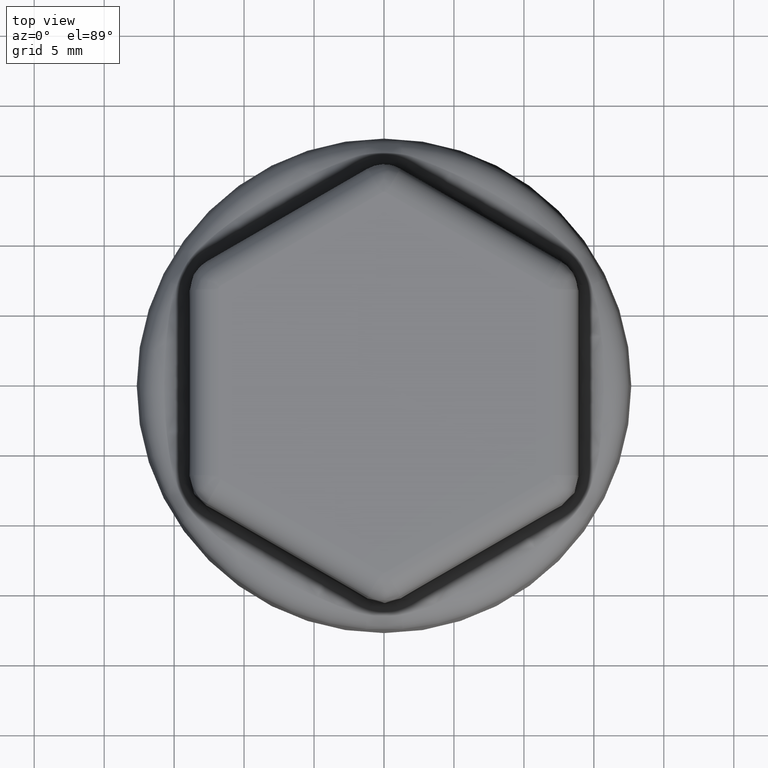
[diagram: clean part render]
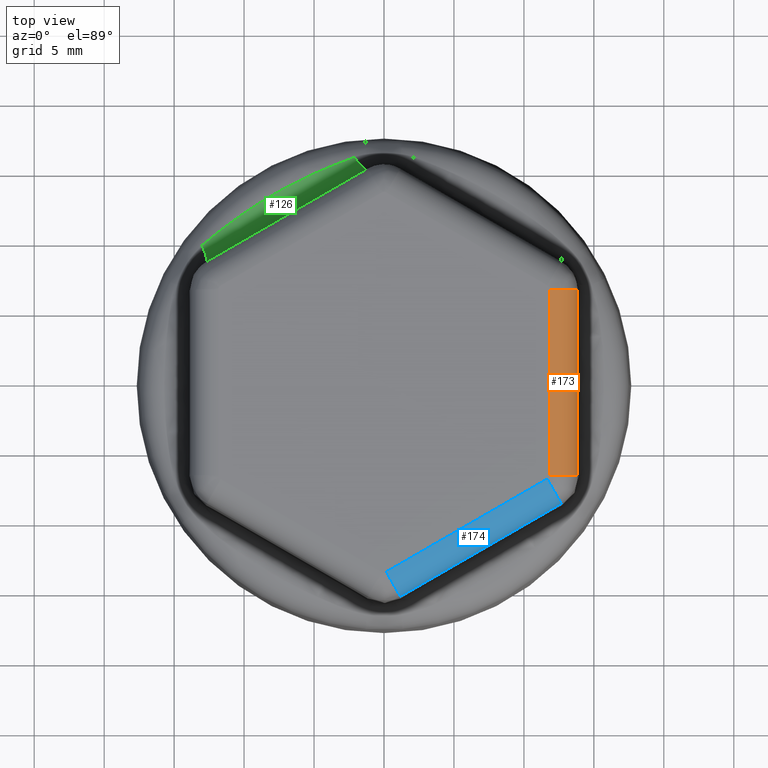
[diagram: same view with three faces highlighted in distinct colors, each labeled with its STEP entity id]
A machine part, top view with three faces highlighted in distinct colors.
Their STEP definitions:

[orange] entity #173 — the highlighted cylindrical surface (edge-blend (fillet) strip) has radius 2 mm, axis along (0, 1, -0).
#173 = ADVANCED_FACE( '', ( #382 ), #383, .T. );
#382 = FACE_OUTER_BOUND( '', #4601, .T. );
#383 = CYLINDRICAL_SURFACE( '', #4602, 2.00000000000000 );
#4601 = EDGE_LOOP( '', ( #5193, #5194, #5195, #5196 ) );
#4602 = AXIS2_PLACEMENT_3D( '', #5197, #5198, #5199 );
#5193 = ORIENTED_EDGE( '', *, *, #5501, .F. );
#5194 = ORIENTED_EDGE( '', *, *, #5431, .F. );
#5195 = ORIENTED_EDGE( '', *, *, #5499, .F. );
#5196 = ORIENTED_EDGE( '', *, *, #5494, .F. );
#5197 = CARTESIAN_POINT( '', ( 11.8251446946300, -6.63957206230187, 13.2999999999999 ) );
#5198 = DIRECTION( '', ( 3.36124605735811E-016, 1.00000000000000, -6.53563886928656E-015 ) );
#5199 = DIRECTION( '', ( 0.000000000000000, -6.53563886928656E-015, -1.00000000000000 ) );
#5431 = EDGE_CURVE( '', #5794, #5796, #5797, .F. );
#5494 = EDGE_CURVE( '', #5719, #5844, #5888, .T. );
#5499 = EDGE_CURVE( '', #5844, #5794, #5893, .T. );
#5501 = EDGE_CURVE( '', #5796, #5719, #5895, .T. );
#5719 = VERTEX_POINT( '', #6693 );
#5794 = VERTEX_POINT( '', #7126 );
#5796 = VERTEX_POINT( '', #7151 );
#5797 = LINE( '', #7152, #7153 );
#5844 = VERTEX_POINT( '', #7500 );
#5888 = LINE( '', #7851, #7852 );
#5893 = CIRCLE( '', #7857, 2.00000000000000 );
#5895 = CIRCLE( '', #7859, 2.00000000000000 );
#6693 = CARTESIAN_POINT( '', ( 13.8248400849428, 6.63957206104442, 13.3349048128744 ) );
#7126 = CARTESIAN_POINT( '', ( 11.8251446946300, -6.63957206230192, 15.2999999999999 ) );
#7151 = CARTESIAN_POINT( '', ( 11.8251446946300, 6.63957204597135, 15.2999999999998 ) );
#7152 = CARTESIAN_POINT( '', ( 11.8251446946300, -7.88953489708792, 15.2999999999999 ) );
#7153 = VECTOR( '', #8175, 1000.00000000000 );
#7500 = CARTESIAN_POINT( '', ( 13.8248400849428, -6.63957206230193, 13.3349048128745 ) );
#7851 = CARTESIAN_POINT( '', ( 13.8248400849428, -6.63957206230187, 13.3349048128745 ) );
#7852 = VECTOR( '', #8257, 1000.00000000000 );
#7857 = AXIS2_PLACEMENT_3D( '', #8270, #8271, #8272 );
#7859 = AXIS2_PLACEMENT_3D( '', #8276, #8277, #8278 );
#8175 = DIRECTION( '', ( -3.36124605735811E-016, -1.00000000000000, 6.53563886928656E-015 ) );
#8257 = DIRECTION( '', ( -3.36124605735811E-016, -1.00000000000000, 6.53563886928656E-015 ) );
#8270 = CARTESIAN_POINT( '', ( 11.8251446946300, -6.63957206230193, 13.2999999999999 ) );
#8271 = DIRECTION( '', ( -5.47295846648949E-016, -1.00000000000000, 6.50521303491302E-015 ) );
#8272 = DIRECTION( '', ( 0.000000000000000, -6.50521303491302E-015, -1.00000000000000 ) );
#8276 = CARTESIAN_POINT( '', ( 11.8251446946300, 6.63957204597133, 13.2999999999998 ) );
#8277 = DIRECTION( '', ( -7.53769352004144E-009, 1.00000000000000, -6.50521300876140E-015 ) );
#8278 = DIRECTION( '', ( -1.00000000000000, -7.53769352004144E-009, 0.000000000000000 ) );

[blue] entity #174 — the highlighted cylindrical surface (edge-blend (fillet) strip) has radius 2 mm, axis along (0.866, 0.5, -0).
#174 = ADVANCED_FACE( '', ( #384 ), #385, .T. );
#384 = FACE_OUTER_BOUND( '', #4603, .T. );
#385 = CYLINDRICAL_SURFACE( '', #4604, 2.00000000000000 );
#4603 = EDGE_LOOP( '', ( #5200, #5201, #5202, #5203 ) );
#4604 = AXIS2_PLACEMENT_3D( '', #5204, #5205, #5206 );
#5200 = ORIENTED_EDGE( '', *, *, #5500, .T. );
#5201 = ORIENTED_EDGE( '', *, *, #5429, .F. );
#5202 = ORIENTED_EDGE( '', *, *, #5462, .F. );
#5203 = ORIENTED_EDGE( '', *, *, #5456, .F. );
#5204 = CARTESIAN_POINT( '', ( -7.46244669079040, -17.9629465510429, 13.3000000000000 ) );
#5205 = DIRECTION( '', ( 0.866025403784439, 0.500000000000000, -6.53563886928656E-015 ) );
#5206 = DIRECTION( '', ( 0.500000000000000, -0.866025403784439, 0.000000000000000 ) );
#5429 = EDGE_CURVE( '', #5790, #5792, #5793, .F. );
#5456 = EDGE_CURVE( '', #5836, #5825, #5838, .T. );
#5462 = EDGE_CURVE( '', #5825, #5790, #5848, .T. );
#5500 = EDGE_CURVE( '', #5836, #5792, #5894, .T. );
#5790 = VERTEX_POINT( '', #7098 );
#5792 = VERTEX_POINT( '', #7123 );
#5793 = LINE( '', #7124, #7125 );
#5825 = VERTEX_POINT( '', #7327 );
#5836 = VERTEX_POINT( '', #7453 );
#5838 = LINE( '', #7456, #7457 );
#5848 = CIRCLE( '', #7556, 2.00000000000000 );
#5894 = CIRCLE( '', #7858, 2.00000000000000 );
#7098 = CARTESIAN_POINT( '', ( 0.162534271104101, -13.5606617401273, 15.3000000000000 ) );
#7123 = CARTESIAN_POINT( '', ( 11.6626104093835, -6.92108968599052, 15.2999999999999 ) );
#7124 = CARTESIAN_POINT( '', ( -7.75250294252897, -18.1304106060643, 15.3000000000000 ) );
#7125 = VECTOR( '', #8174, 1000.00000000000 );
#7327 = CARTESIAN_POINT( '', ( 1.16238196626049, -15.2924487479688, 13.3349048128746 ) );
#7453 = CARTESIAN_POINT( '', ( 12.6624581175932, -8.65287668629570, 13.3349048128745 ) );
#7456 = CARTESIAN_POINT( '', ( -6.46259899563401, -19.6947335588844, 13.3349048128746 ) );
#7457 = VECTOR( '', #8203, 1000.00000000000 );
#7556 = AXIS2_PLACEMENT_3D( '', #8205, #8206, #8207 );
#7858 = AXIS2_PLACEMENT_3D( '', #8273, #8274, #8275 );
#8174 = DIRECTION( '', ( -0.866025403784439, -0.500000000000000, 6.53563886928656E-015 ) );
#8203 = DIRECTION( '', ( -0.866025403784439, -0.500000000000000, 6.53373453083154E-015 ) );
#8205 = CARTESIAN_POINT( '', ( 0.162534271104096, -13.5606617401273, 13.3000000000000 ) );
#8206 = DIRECTION( '', ( -0.866025403784439, -0.500000000000000, 6.86197357661811E-015 ) );
#8207 = DIRECTION( '', ( 0.500000000000000, -0.866025403784439, 0.000000000000000 ) );
#8273 = CARTESIAN_POINT( '', ( 11.6626104093835, -6.92108968599053, 13.2999999999999 ) );
#8274 = DIRECTION( '', ( -0.866025400015694, -0.500000006527657, 6.25723574431917E-015 ) );
#8275 = DIRECTION( '', ( 0.500000006527657, -0.866025400015694, 0.000000000000000 ) );

[green] entity #126 — the highlighted face is a freeform B-spline surface patch.
#126 = ADVANCED_FACE( '', ( #286 ), #287, .F. );
#286 = FACE_OUTER_BOUND( '', #1827, .T. );
#287 = ( B_SPLINE_SURFACE( 3, 2, ( ( #1829, #1830, #1831 ), ( #1832, #1833, #1834 ), ( #1835, #1836, #1837 ), ( #1838, #1839, #1840 ), ( #1841, #1842, #1843 ), ( #1844, #1845, #1846 ), ( #1847, #1848, #1849 ), ( #1850, #1851, #1852 ), ( #1853, #1854, #1855 ), ( #1856, #1857, #1858 ), ( #1859, #1860, #1861 ), ( #1862, #1863, #1864 ), ( #1865, #1866, #1867 ), ( #1868, #1869, #1870 ), ( #1871, #1872, #1873 ), ( #1874, #1875, #1876 ), ( #1877, #1878, #1879 ), ( #1880, #1881, #1882 ), ( #1883, #1884, #1885 ), ( #1886, #1887, #1888 ), ( #1889, #1890, #1891 ), ( #1892, #1893, #1894 ), ( #1895, #1896, #1897 ), ( #1898, #1899, #1900 ), ( #1901, #1902, #1903 ), ( #1904, #1905, #1906 ), ( #1907, #1908, #1909 ), ( #1910, #1911, #1912 ), ( #1913, #1914, #1915 ), ( #1916, #1917, #1918 ), ( #1919, #1920, #1921 ), ( #1922, #1923, #1924 ), ( #1925, #1926, #1927 ), ( #1928, #1929, #1930 ), ( #1931, #1932, #1933 ), ( #1934, #1935, #1936 ) ), .UNSPECIFIED., .F., .F., .F. )B_SPLINE_SURFACE_WITH_KNOTS( ( 4, 2, 2, 2, 2, 2, 2, 2, 2, 2, 2, 2, 2, 2, 2, 2, 2, 4 ), ( 3, 3 ), ( -1.37918292238137E-011, 0.000831443280716835, 0.00166288657522550, 0.00249432986973416, 0.00332577316424283, 0.00415721645875149, 0.00498865975326016, 0.00582010304776882, 0.00665154634227749, 0.00748298963678615, 0.00789871128404048, 0.00831443293129481, 0.00914587622580348, 0.00997731952031214, 0.0108087628148208, 0.0116402061093295, 0.0124716494038381, 0.0133030926983468 ), ( 0.000000000000000, 1.00000000000000 ), .UNSPECIFIED. )RATIONAL_B_SPLINE_SURFACE( ( ( 1.00000000000000, 0.843691954398489, 1.00000000000000 ), ( 1.00000000000000, 0.837211556628572, 1.00000000000000 ), ( 1.00000000000000, 0.830867068833684, 1.00000000000000 ), ( 1.00000000000000, 0.818588439355314, 1.00000000000000 ), ( 1.00000000000000, 0.812654270164464, 1.00000000000000 ), ( 1.00000000000000, 0.801343099701888, 1.00000000000000 ), ( 1.00000000000000, 0.795966344957580, 1.00000000000000 ), ( 1.00000000000000, 0.785920784457937, 1.00000000000000 ), ( 1.00000000000000, 0.781252302085487, 1.00000000000000 ), ( 1.00000000000000, 0.772769031415619, 1.00000000000000 ), ( 1.00000000000000, 0.768954609714511, 1.00000000000000 ), ( 1.00000000000000, 0.762309661858810, 1.00000000000000 ), ( 1.00000000000000, 0.759479492766118, 1.00000000000000 ), ( 1.00000000000000, 0.754906625058297, 1.00000000000000 ), ( 1.00000000000000, 0.753164210286720, 1.00000000000000 ), ( 1.00000000000000, 0.750833929916915, 1.00000000000000 ), ( 1.00000000000000, 0.750246217012175, 1.00000000000000 ), ( 1.00000000000000, 0.750249161932287, 1.00000000000000 ), ( 1.00000000000000, 0.750839808116270, 1.00000000000000 ), ( 1.00000000000000, 0.752593318346988, 1.00000000000000 ), ( 1.00000000000000, 0.753322058915385, 1.00000000000000 ), ( 1.00000000000000, 0.755061262384712, 1.00000000000000 ), ( 1.00000000000000, 0.756071797194575, 1.00000000000000 ), ( 1.00000000000000, 0.759510829549073, 1.00000000000000 ), ( 1.00000000000000, 0.762347930420317, 1.00000000000000 ), ( 1.00000000000000, 0.769006506174962, 1.00000000000000 ), ( 1.00000000000000, 0.772827621118696, 1.00000000000000 ), ( 1.00000000000000, 0.781322027521631, 1.00000000000000 ), ( 1.00000000000000, 0.785994947788475, 1.00000000000000 ), ( 1.00000000000000, 0.796044811842870, 1.00000000000000 ), ( 1.00000000000000, 0.801421428079916, 1.00000000000000 ), ( 1.00000000000000, 0.812725261667603, 1.00000000000000 ), ( 1.00000000000000, 0.818652231052570, 1.00000000000000 ), ( 1.00000000000000, 0.830906840572950, 1.00000000000000 ), ( 1.00000000000000, 0.837234508911780, 1.00000000000000 ), ( 1.00000000000000, 0.843691954387988, 1.00000000000000 ) ) )BOUNDED_SURFACE(  )REPRESENTATION_ITEM( '' )GEOMETRIC_REPRESENTATION_ITEM(  )SURFACE(  ) );
#1827 = EDGE_LOOP( '', ( #4931, #4932, #4933, #4934 ) );
#1829 = CARTESIAN_POINT( '', ( -1.21895219158199, 15.3904312524213, 6.85309273665093 ) );
#1830 = CARTESIAN_POINT( '', ( -1.43667372168926, 15.2899192363232, 5.60332335356368 ) );
#1831 = CARTESIAN_POINT( '', ( -2.10518756709903, 16.2454853265960, 5.09399877476275 ) );
#1832 = CARTESIAN_POINT( '', ( -1.45662842639916, 15.2521501209029, 6.90561934449520 ) );
#1833 = CARTESIAN_POINT( '', ( -1.65810606916732, 15.1617861204022, 5.61766645208328 ) );
#1834 = CARTESIAN_POINT( '', ( -2.33684124149037, 16.1617254748818, 5.12026206428064 ) );
#1835 = CARTESIAN_POINT( '', ( -1.69473550919621, 15.1137933745878, 6.94955591525476 ) );
#1836 = CARTESIAN_POINT( '', ( -1.88083759584621, 15.0330377537294, 5.62531998385341 ) );
#1837 = CARTESIAN_POINT( '', ( -2.57067861239467, 16.0751445689728, 5.14223036439333 ) );
#1838 = CARTESIAN_POINT( '', ( -2.17158913451107, 14.8369724450816, 7.02444217889953 ) );
#1839 = CARTESIAN_POINT( '', ( -2.32893481591999, 14.7742105117753, 5.63118399447030 ) );
#1840 = CARTESIAN_POINT( '', ( -3.04195748252120, 15.8958560004130, 5.17967349555842 ) );
#1841 = CARTESIAN_POINT( '', ( -2.41033877359558, 14.6985067697113, 7.05537720450969 ) );
#1842 = CARTESIAN_POINT( '', ( -2.55430315343976, 14.6441303308483, 5.62938351145572 ) );
#1843 = CARTESIAN_POINT( '', ( -3.27940185644179, 15.8031464569268, 5.19514100896670 ) );
#1844 = CARTESIAN_POINT( '', ( -2.88832418524989, 14.4214922791546, 7.10744691694542 ) );
#1845 = CARTESIAN_POINT( '', ( -3.00769878295887, 14.3825585147872, 5.61964552783386 ) );
#1846 = CARTESIAN_POINT( '', ( -3.75705849901164, 15.6111811410270, 5.22117586463545 ) );
#1847 = CARTESIAN_POINT( '', ( -3.12756030899814, 14.2829434039086, 7.12857452410173 ) );
#1848 = CARTESIAN_POINT( '', ( -3.23572803237501, 14.2510658294608, 5.61170406190404 ) );
#1849 = CARTESIAN_POINT( '', ( -3.99727056790262, 15.5119243965778, 5.23173966871944 ) );
#1850 = CARTESIAN_POINT( '', ( -3.60639251477173, 14.0057840924133, 7.16357306269339 ) );
#1851 = CARTESIAN_POINT( '', ( -3.69438811566072, 13.9866431129042, 5.59261208091764 ) );
#1852 = CARTESIAN_POINT( '', ( -4.47952357273848, 15.3065510916868, 5.24923893755268 ) );
#1853 = CARTESIAN_POINT( '', ( -3.84598874792334, 13.8671736303182, 7.17744094745004 ) );
#1854 = CARTESIAN_POINT( '', ( -3.92502055359257, 13.8537121512827, 5.58146177856226 ) );
#1855 = CARTESIAN_POINT( '', ( -4.72156381379294, 15.2004336882636, 5.25617288035307 ) );
#1856 = CARTESIAN_POINT( '', ( -4.32543996105345, 13.5899084545709, 7.19996044070163 ) );
#1857 = CARTESIAN_POINT( '', ( -4.38869409409800, 13.5864719252702, 5.55854890971271 ) );
#1858 = CARTESIAN_POINT( '', ( -5.20645019645553, 14.9811572525053, 5.26743262659733 ) );
#1859 = CARTESIAN_POINT( '', ( -4.56529498769424, 13.4512537329384, 7.20861110849507 ) );
#1860 = CARTESIAN_POINT( '', ( -4.62173602549780, 13.4521621251191, 5.54678918309308 ) );
#1861 = CARTESIAN_POINT( '', ( -5.44929526176966, 14.8679976080320, 5.27175796083319 ) );
#1862 = CARTESIAN_POINT( '', ( -5.04518490018069, 13.1739135296834, 7.22228652404885 ) );
#1863 = CARTESIAN_POINT( '', ( -5.08986181982379, 13.1823313312376, 5.52487147957800 ) );
#1864 = CARTESIAN_POINT( '', ( -5.93471144736457, 14.6346088879393, 5.27859566831334 ) );
#1865 = CARTESIAN_POINT( '', ( -5.28521978178350, 13.0352280487863, 7.22731135735040 ) );
#1866 = CARTESIAN_POINT( '', ( -5.32494528517234, 13.0468104841626, 5.51471761501719 ) );
#1867 = CARTESIAN_POINT( '', ( -6.17728123247477, 14.5143795187668, 5.28110808521467 ) );
#1868 = CARTESIAN_POINT( '', ( -5.76541239476257, 12.7578360769037, 7.23488440088940 ) );
#1869 = CARTESIAN_POINT( '', ( -5.79660551330763, 12.7748396540450, 5.49773308367646 ) );
#1870 = CARTESIAN_POINT( '', ( -6.66104685530797, 14.2669914682980, 5.28489460677979 ) );
#1871 = CARTESIAN_POINT( '', ( -6.00557010488595, 12.6191295895526, 7.23743303958970 ) );
#1872 = CARTESIAN_POINT( '', ( -6.03318045120946, 12.6383906454261, 5.49090634504202 ) );
#1873 = CARTESIAN_POINT( '', ( -6.90224124187927, 14.1398328667508, 5.28616892628414 ) );
#1874 = CARTESIAN_POINT( '', ( -6.48597374846122, 12.3417015266673, 7.24075175504407 ) );
#1875 = CARTESIAN_POINT( '', ( -6.50712606681269, 12.3649440074032, 5.48167849659950 ) );
#1876 = CARTESIAN_POINT( '', ( -7.38217832895167, 13.8788977696248, 5.28782828390731 ) );
#1877 = CARTESIAN_POINT( '', ( -6.72621966483512, 12.2029799540534, 7.24152217610831 ) );
#1878 = CARTESIAN_POINT( '', ( -6.74449376530431, 12.2279480500722, 5.47927976695252 ) );
#1879 = CARTESIAN_POINT( '', ( -7.62091961462357, 13.7451217360169, 5.28821349449101 ) );
#1880 = CARTESIAN_POINT( '', ( -7.20678812610191, 11.9255237036166, 7.24151820497565 ) );
#1881 = CARTESIAN_POINT( '', ( -7.21925209303630, 11.9538459618842, 5.47929166809419 ) );
#1882 = CARTESIAN_POINT( '', ( -8.09493865707435, 13.4714263414249, 5.28821150892553 ) );
#1883 = CARTESIAN_POINT( '', ( -7.44711066776745, 11.7867890263455, 7.24074387785281 ) );
#1884 = CARTESIAN_POINT( '', ( -7.45663932986610, 11.8167417895511, 5.48170230309463 ) );
#1885 = CARTESIAN_POINT( '', ( -8.33021517598076, 13.3315077848545, 5.28782434531072 ) );
#1886 = CARTESIAN_POINT( '', ( -7.80766077818183, 11.5786756719965, 7.23824583649416 ) );
#1887 = CARTESIAN_POINT( '', ( -7.81217546490524, 11.6113329663728, 5.48864536029623 ) );
#1888 = CARTESIAN_POINT( '', ( -8.67985311873989, 13.1174863288921, 5.28657532471084 ) );
#1889 = CARTESIAN_POINT( '', ( -7.92785538064190, 11.5093026328992, 7.23718671502350 ) );
#1890 = CARTESIAN_POINT( '', ( -7.93059724446436, 11.5429044157658, 5.49150833390847 ) );
#1891 = CARTESIAN_POINT( '', ( -8.79585390788468, 13.0454562851522, 5.28604576390971 ) );
#1892 = CARTESIAN_POINT( '', ( -8.16827070482656, 11.3705520877197, 7.23454191374621 ) );
#1893 = CARTESIAN_POINT( '', ( -8.16717757225029, 11.4061794916634, 5.49821662806776 ) );
#1894 = CARTESIAN_POINT( '', ( -9.02666485465058, 12.9001054319890, 5.28472336334971 ) );
#1895 = CARTESIAN_POINT( '', ( -8.28849745548527, 11.3011711039036, 7.23295608149109 ) );
#1896 = CARTESIAN_POINT( '', ( -8.28534193352746, 11.3378797583767, 5.50206212848110 ) );
#1897 = CARTESIAN_POINT( '', ( -9.14148060694870, 12.8267808572142, 5.28393044713181 ) );
#1898 = CARTESIAN_POINT( '', ( -8.64910108410365, 11.0930913726775, 7.22725681568211 ) );
#1899 = CARTESIAN_POINT( '', ( -8.63921006611282, 11.1333165307953, 5.51483122868705 ) );
#1900 = CARTESIAN_POINT( '', ( -9.48388918732898, 12.6050893181616, 5.28108081438038 ) );
#1901 = CARTESIAN_POINT( '', ( -8.88943563700629, 10.9544357703374, 7.22221515882578 ) );
#1902 = CARTESIAN_POINT( '', ( -8.87431636072949, 10.9973727872365, 5.52500524407704 ) );
#1903 = CARTESIAN_POINT( '', ( -9.70947123236365, 12.4549817067461, 5.27855998570220 ) );
#1904 = CARTESIAN_POINT( '', ( -9.36990613834369, 10.6773124954518, 7.20849681180891 ) );
#1905 = CARTESIAN_POINT( '', ( -9.34237509309638, 10.7266965926226, 5.54695271623093 ) );
#1906 = CARTESIAN_POINT( '', ( -10.1545635833607, 12.1510423325350, 5.27170081248971 ) );
#1907 = CARTESIAN_POINT( '', ( -9.61004207483882, 10.5388448342041, 7.19981990312944 ) );
#1908 = CARTESIAN_POINT( '', ( -9.57532719506530, 10.5919644212089, 5.55872191720241 ) );
#1909 = CARTESIAN_POINT( '', ( -10.3740734236147, 11.9972119016808, 5.26736235781234 ) );
#1910 = CARTESIAN_POINT( '', ( -10.0900284489380, 10.2621796654896, 7.17724063446509 ) );
#1911 = CARTESIAN_POINT( '', ( -10.0387155700808, 10.3239651940302, 5.58163511890559 ) );
#1912 = CARTESIAN_POINT( '', ( -10.8064797122219, 11.6868047927563, 5.25607272385949 ) );
#1913 = CARTESIAN_POINT( '', ( -10.3298789266252, 10.1239821200940, 7.16333900812644 ) );
#1914 = CARTESIAN_POINT( '', ( -10.2691527432844, 10.1906976797994, 5.59277608124718 ) );
#1915 = CARTESIAN_POINT( '', ( -11.0193761267365, 11.5302293827039, 5.24912191027145 ) );
#1916 = CARTESIAN_POINT( '', ( -10.8091832607768, 9.84796233276734, 7.12827644569836 ) );
#1917 = CARTESIAN_POINT( '', ( -10.7273235192236, 9.92578862440100, 5.61182978858288 ) );
#1918 = CARTESIAN_POINT( '', ( -11.4381726595071, 11.2153436054128, 5.23159062951552 ) );
#1919 = CARTESIAN_POINT( '', ( -11.0486372655586, 9.71013995049046, 7.10711822425559 ) );
#1920 = CARTESIAN_POINT( '', ( -10.9550587951779, 9.79414612713396, 5.61974204062198 ) );
#1921 = CARTESIAN_POINT( '', ( -11.6440731785325, 11.0570342718068, 5.22101151829480 ) );
#1922 = CARTESIAN_POINT( '', ( -11.5270107315601, 9.43500099863521, 7.05501809588481 ) );
#1923 = CARTESIAN_POINT( '', ( -11.4077717965058, 9.53257718854088, 5.62941516414463 ) );
#1924 = CARTESIAN_POINT( '', ( -12.0486482555210, 10.7396900790350, 5.19496145464997 ) );
#1925 = CARTESIAN_POINT( '', ( -11.7659305476113, 9.29768409329650, 7.02408268341684 ) );
#1926 = CARTESIAN_POINT( '', ( -11.6327515433216, 9.40264950935913, 5.63117954703945 ) );
#1927 = CARTESIAN_POINT( '', ( -12.2473236388898, 10.5806558422899, 5.17949374782398 ) );
#1928 = CARTESIAN_POINT( '', ( -12.2430638250659, 9.02371867183072, 6.94928353573193 ) );
#1929 = CARTESIAN_POINT( '', ( -12.0799763666530, 9.14456315058981, 5.62527475082671 ) );
#1930 = CARTESIAN_POINT( '', ( -12.6373536041086, 10.2628438063582, 5.14209417462497 ) );
#1931 = CARTESIAN_POINT( '', ( -12.4812798536844, 8.88706839933033, 6.90543340438135 ) );
#1932 = CARTESIAN_POINT( '', ( -12.3022237724580, 9.01640292263714, 5.61761567063354 ) );
#1933 = CARTESIAN_POINT( '', ( -12.8287112061664, 10.1040645289712, 5.12016906649126 ) );
#1934 = CARTESIAN_POINT( '', ( -12.7190283436172, 8.75085919034086, 6.85309273673604 ) );
#1935 = CARTESIAN_POINT( '', ( -12.5231216192644, 8.88915555830095, 5.60332335358692 ) );
#1936 = CARTESIAN_POINT( '', ( -13.0164092057848, 9.94588857639416, 5.09399877480530 ) );
#4931 = ORIENTED_EDGE( '', *, *, #5393, .T. );
#4932 = ORIENTED_EDGE( '', *, *, #5404, .F. );
#4933 = ORIENTED_EDGE( '', *, *, #5396, .F. );
#4934 = ORIENTED_EDGE( '', *, *, #5376, .F. );
#5376 = EDGE_CURVE( '', #5687, #5701, #5702, .T. );
#5393 = EDGE_CURVE( '', #5687, #5729, #5731, .T. );
#5396 = EDGE_CURVE( '', #5701, #5735, #5736, .T. );
#5404 = EDGE_CURVE( '', #5735, #5729, #5748, .T. );
#5687 = VERTEX_POINT( '', #6403 );
#5701 = VERTEX_POINT( '', #6516 );
#5702 = B_SPLINE_CURVE_WITH_KNOTS( '', 3, ( #6517, #6518, #6519, #6520, #6521, #6522, #6523, #6524, #6525, #6526, #6527, #6528, #6529, #6530, #6531, #6532, #6533, #6534, #6535, #6536, #6537, #6538, #6539, #6540, #6541, #6542, #6543, #6544, #6545, #6546, #6547, #6548 ), .UNSPECIFIED., .F., .F., ( 4, 1, 1, 1, 2, 2, 2, 1, 1, 1, 1, 2, 2, 2, 1, 1, 2, 2, 1, 1, 1, 4 ), ( 2.16840434497101E-019, 0.000415721646823339, 0.000831443293646677, 0.00124716494047001, 0.00166288658729335, 0.00249432988094002, 0.00332577317458670, 0.00415721646823337, 0.00498865976188004, 0.00582010305552671, 0.00665154634917339, 0.00748298964282006, 0.00789871128964340, 0.00831443293646674, 0.00914587623011341, 0.00997731952376009, 0.0108087628174068, 0.0116402061110534, 0.0120559277578768, 0.0124716494047001, 0.0128873710515235, 0.0133030926983468 ), .UNSPECIFIED. );
#5729 = VERTEX_POINT( '', #6778 );
#5731 = CIRCLE( '', #6785, 2.00000000000000 );
#5735 = VERTEX_POINT( '', #6797 );
#5736 = CIRCLE( '', #6798, 2.00000000000000 );
#5748 = B_SPLINE_CURVE_WITH_KNOTS( '', 3, ( #6844, #6845, #6846, #6847, #6848, #6849, #6850, #6851, #6852, #6853, #6854, #6855, #6856, #6857, #6858, #6859, #6860, #6861, #6862, #6863, #6864, #6865, #6866, #6867, #6868, #6869, #6870, #6871, #6872, #6873, #6874, #6875, #6876, #6877, #6878, #6879 ), .UNSPECIFIED., .F., .F., ( 4, 1, 1, 1, 2, 2, 2, 2, 2, 2, 1, 2, 1, 1, 1, 2, 2, 2, 2, 1, 1, 1, 4 ), ( 0.000000000000000, 0.000396585950711457, 0.000793171901422914, 0.00118975785213437, 0.00158634380284583, 0.00237951570426874, 0.00317268760569165, 0.00396585950711457, 0.00475903140853748, 0.00495732438389321, 0.00515561735924894, 0.00555220330996039, 0.00634537521138331, 0.00713854711280622, 0.00793171901422914, 0.00872489091565205, 0.00951806281707496, 0.0103112347184979, 0.0111044066199208, 0.0115009925706322, 0.0118975785213437, 0.0122941644720552, 0.0126907504227666 ), .UNSPECIFIED. );
#6403 = CARTESIAN_POINT( '', ( -1.21895219158199, 15.3904312524213, 6.85309273665093 ) );
#6516 = CARTESIAN_POINT( '', ( -12.7190283436407, 8.75085919038156, 6.85309273404390 ) );
#6517 = CARTESIAN_POINT( '', ( -1.21895219158199, 15.3904312524213, 6.85309273665093 ) );
#6518 = CARTESIAN_POINT( '', ( -1.33779148639466, 15.3212900016224, 6.87935630180224 ) );
#6519 = CARTESIAN_POINT( '', ( -1.57568409160730, 15.1829708985207, 6.92756892729667 ) );
#6520 = CARTESIAN_POINT( '', ( -1.93308134431442, 14.9753967542697, 6.98863176155564 ) );
#6521 = CARTESIAN_POINT( '', ( -2.29096455927858, 14.7677394994862, 7.03989770895739 ) );
#6522 = CARTESIAN_POINT( '', ( -2.52983513701882, 14.6292531409729, 7.06839463418083 ) );
#6523 = CARTESIAN_POINT( '', ( -2.88832419544995, 14.4214922732600, 7.10744691722185 ) );
#6524 = CARTESIAN_POINT( '', ( -3.12756031889452, 14.2829433981672, 7.12857452547753 ) );
#6525 = CARTESIAN_POINT( '', ( -3.60639252423588, 14.0057840869484, 7.16357306273268 ) );
#6526 = CARTESIAN_POINT( '', ( -3.84598875709409, 13.8671736250047, 7.17744094838496 ) );
#6527 = CARTESIAN_POINT( '', ( -4.32543996977706, 13.5899084495363, 7.19996044060719 ) );
#6528 = CARTESIAN_POINT( '', ( -4.80515002683155, 13.3125990058285, 7.21726169008603 ) );
#6529 = CARTESIAN_POINT( '', ( -5.52525469213507, 12.8965425599359, 7.23233576174136 ) );
#6530 = CARTESIAN_POINT( '', ( -6.24572783882292, 12.4804230953962, 7.23998133379820 ) );
#6531 = CARTESIAN_POINT( '', ( -6.96646559040959, 12.0642583774367, 7.24229253221141 ) );
#6532 = CARTESIAN_POINT( '', ( -7.44711067325483, 11.7867890231802, 7.24074387771449 ) );
#6533 = CARTESIAN_POINT( '', ( -7.80766078328787, 11.5786756690482, 7.23824583650894 ) );
#6534 = CARTESIAN_POINT( '', ( -7.92785538563075, 11.5093026300215, 7.23718671489102 ) );
#6535 = CARTESIAN_POINT( '', ( -8.16827070955838, 11.3705520849873, 7.23454191377175 ) );
#6536 = CARTESIAN_POINT( '', ( -8.28849746009056, 11.3011711012482, 7.23295608131462 ) );
#6537 = CARTESIAN_POINT( '', ( -8.64910108835173, 11.0930913702220, 7.22725681582233 ) );
#6538 = CARTESIAN_POINT( '', ( -9.12977019359695, 10.8157801658879, 7.21717350097990 ) );
#6539 = CARTESIAN_POINT( '', ( -9.85017801425423, 10.4003771712973, 7.19114299310607 ) );
#6540 = CARTESIAN_POINT( '', ( -10.3298789290811, 10.1239821186903, 7.16333900741975 ) );
#6541 = CARTESIAN_POINT( '', ( -10.8091832627931, 9.84796233159559, 7.12827644607789 ) );
#6542 = CARTESIAN_POINT( '', ( -11.0486372672588, 9.71013994952592, 7.10711822340842 ) );
#6543 = CARTESIAN_POINT( '', ( -11.4074173664414, 9.50378573579768, 7.06804312815803 ) );
#6544 = CARTESIAN_POINT( '', ( -11.6464700192969, 9.36634313332915, 7.03953901603976 ) );
#6545 = CARTESIAN_POINT( '', ( -12.0045858000889, 9.16061753193719, 6.98830498251382 ) );
#6546 = CARTESIAN_POINT( '', ( -12.3621699656562, 8.95539497229920, 6.92734086053215 ) );
#6547 = CARTESIAN_POINT( '', ( -12.6001531976991, 8.81896431097959, 6.87926327004289 ) );
#6548 = CARTESIAN_POINT( '', ( -12.7190283436172, 8.75085919034086, 6.85309273673604 ) );
#6778 = CARTESIAN_POINT( '', ( -2.10518756709903, 16.2454853265960, 5.09399877476275 ) );
#6785 = AXIS2_PLACEMENT_3D( '', #8115, #8116, #8117 );
#6797 = CARTESIAN_POINT( '', ( -13.0164092057848, 9.94588857639416, 5.09399877480530 ) );
#6798 = AXIS2_PLACEMENT_3D( '', #8121, #8122, #8123 );
#6844 = CARTESIAN_POINT( '', ( -13.0164092057848, 9.94588857639416, 5.09399877480530 ) );
#6845 = CARTESIAN_POINT( '', ( -12.9154666655658, 10.0309543863150, 5.10807295649787 ) );
#6846 = CARTESIAN_POINT( '', ( -12.7128482690150, 10.2002692579227, 5.13356695409564 ) );
#6847 = CARTESIAN_POINT( '', ( -12.4066394113837, 10.4515970510812, 5.16514658996354 ) );
#6848 = CARTESIAN_POINT( '', ( -12.0980700985439, 10.7001041379159, 5.19113243454364 ) );
#6849 = CARTESIAN_POINT( '', ( -11.8907328469882, 10.8637881114436, 5.20531969653195 ) );
#6850 = CARTESIAN_POINT( '', ( -11.5784725128505, 11.1077503297620, 5.22462334866390 ) );
#6851 = CARTESIAN_POINT( '', ( -11.3686255942100, 11.2683048448492, 5.23487087451574 ) );
#6852 = CARTESIAN_POINT( '', ( -10.9454091162956, 11.5849003394106, 5.25169731807562 ) );
#6853 = CARTESIAN_POINT( '', ( -10.7320395063348, 11.7409415399345, 5.25827178134730 ) );
#6854 = CARTESIAN_POINT( '', ( -10.3016262063372, 12.0482320409735, 5.26889222000291 ) );
#6855 = CARTESIAN_POINT( '', ( -10.0845825014298, 12.1994814833203, 5.27293570377006 ) );
#6856 = CARTESIAN_POINT( '', ( -9.64669514929803, 12.4969653796407, 5.27931458690586 ) );
#6857 = CARTESIAN_POINT( '', ( -9.42585150073859, 12.6431999216573, 5.28164860351851 ) );
#6858 = CARTESIAN_POINT( '', ( -9.14735940161192, 12.8227517426914, 5.28384606653874 ) );
#6859 = CARTESIAN_POINT( '', ( -9.09153085748675, 12.8585054413079, 5.28424901013683 ) );
#6860 = CARTESIAN_POINT( '', ( -8.97966736739007, 12.9296622796260, 5.28498782309784 ) );
#6861 = CARTESIAN_POINT( '', ( -8.81160681014905, 13.0358438336596, 5.28599495269770 ) );
#6862 = CARTESIAN_POINT( '', ( -8.64274788012932, 13.1403608461005, 5.28672603640205 ) );
#6863 = CARTESIAN_POINT( '', ( -8.30396174727307, 13.3471706324454, 5.28787230040049 ) );
#6864 = CARTESIAN_POINT( '', ( -7.84939635820329, 13.6169827310654, 5.28857193299424 ) );
#6865 = CARTESIAN_POINT( '', ( -7.15900270250663, 14.0039291155703, 5.28746356850521 ) );
#6866 = CARTESIAN_POINT( '', ( -6.46015548913310, 14.3732758124844, 5.28387955757818 ) );
#6867 = CARTESIAN_POINT( '', ( -5.98874009851523, 14.6079819916907, 5.27919442624312 ) );
#6868 = CARTESIAN_POINT( '', ( -5.51465473723388, 14.8370773122342, 5.27280446778558 ) );
#6869 = CARTESIAN_POINT( '', ( -5.27627700155014, 14.9488194813931, 5.26875852898463 ) );
#6870 = CARTESIAN_POINT( '', ( -4.79697109511428, 15.1668934615151, 5.25814133246282 ) );
#6871 = CARTESIAN_POINT( '', ( -4.55604281455342, 15.2732251911732, 5.25157264829883 ) );
#6872 = CARTESIAN_POINT( '', ( -4.07178893570827, 15.4807298911657, 5.23476646570103 ) );
#6873 = CARTESIAN_POINT( '', ( -3.82846316493067, 15.5819027635742, 5.22453353692831 ) );
#6874 = CARTESIAN_POINT( '', ( -3.46181963804887, 15.7300220466108, 5.20525539849432 ) );
#6875 = CARTESIAN_POINT( '', ( -3.21683962875844, 15.8275557566333, 5.19108589640830 ) );
#6876 = CARTESIAN_POINT( '', ( -2.84780041355050, 15.9703493501445, 5.16512662374751 ) );
#6877 = CARTESIAN_POINT( '', ( -2.47728502910617, 16.1097774974858, 5.13356692008360 ) );
#6878 = CARTESIAN_POINT( '', ( -2.22935967315327, 16.2005879714668, 5.10807654852067 ) );
#6879 = CARTESIAN_POINT( '', ( -2.10518756709904, 16.2454853265960, 5.09399877476279 ) );
#8115 = CARTESIAN_POINT( '', ( -2.21879987486928, 17.1222182671950, 6.88799754709936 ) );
#8116 = DIRECTION( '', ( 0.849002312867579, 0.493953460088139, -0.187630093568322 ) );
#8117 = DIRECTION( '', ( -0.502884814611163, 0.864353436525532, 0.000000000000000 ) );
#8121 = CARTESIAN_POINT( '', ( -13.7188760387736, 10.4826461981824, 6.88799754961061 ) );
#8122 = DIRECTION( '', ( 0.852277405418691, 0.488280835034450, 0.187630089140428 ) );
#8123 = DIRECTION( '', ( -0.497109620305565, 0.867687746484677, 0.000000000000000 ) );